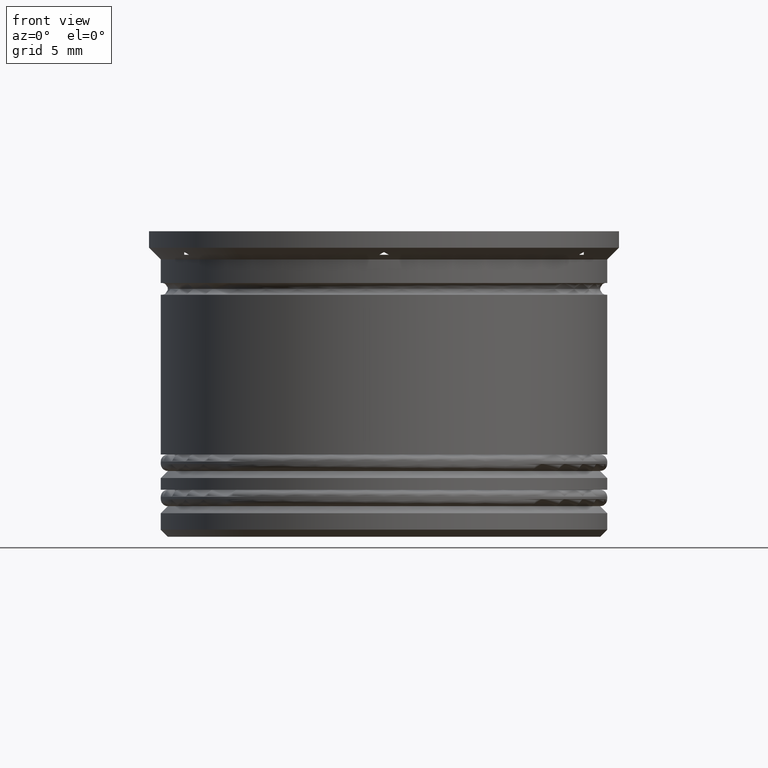
[diagram: clean part render]
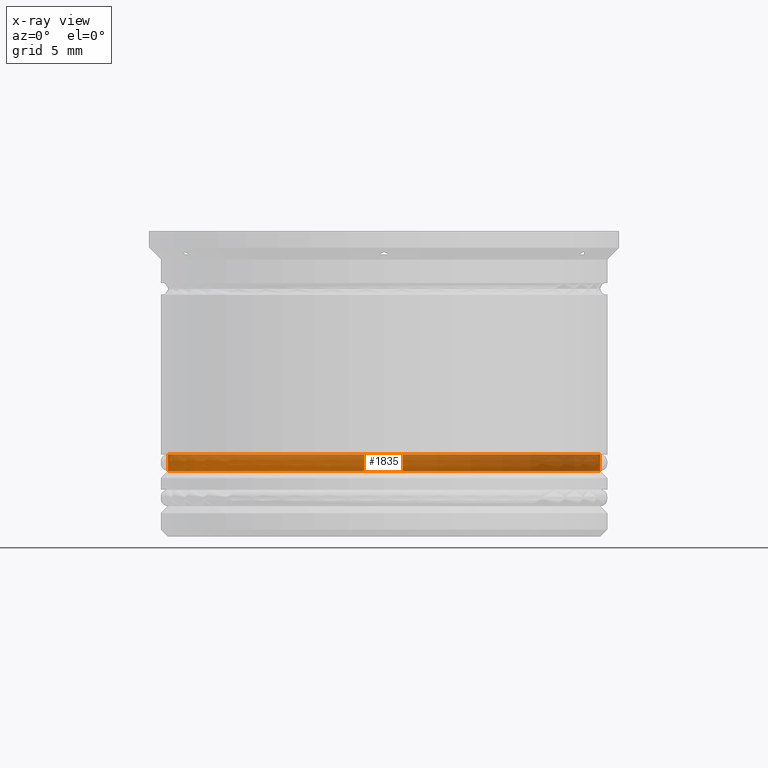
[diagram: x-ray — body ghosted, one internal face saturated and labeled with its STEP entity id]
A machine part, front view, then the same camera in x-ray: the body is ghosted and one INTERNAL B-rep face — a face not visible from any outside direction — is saturated and labeled: STEP entity #1835.
In plain terms, the highlighted cylindrical surface (partial cylindrical patch) has radius 9.2 mm, axis along (-0, -0, 1).
Its self-contained STEP definition (entity closure, byte-faithful):
#8 = CIRCLE ( 'NONE', #1205, 9.199999999999999289 ) ;
#27 = EDGE_CURVE ( 'NONE', #730, #370, #1903, .T. ) ;
#45 = VECTOR ( 'NONE', #945, 1000.000000000000000 ) ;
#94 = VECTOR ( 'NONE', #164, 1000.000000000000000 ) ;
#164 = DIRECTION ( 'NONE',  ( -0.000000000000000000, -0.000000000000000000, 1.000000000000000000 ) ) ;
#234 = EDGE_CURVE ( 'NONE', #290, #321, #8, .T. ) ;
#290 = VERTEX_POINT ( 'NONE', #1611 ) ;
#321 = VERTEX_POINT ( 'NONE', #1272 ) ;
#353 = EDGE_CURVE ( 'NONE', #290, #730, #1425, .T. ) ;
#370 = VERTEX_POINT ( 'NONE', #1725 ) ;
#419 = CARTESIAN_POINT ( 'NONE',  ( 9.199999999999999289, 0.000000000000000000, 0.000000000000000000 ) ) ;
#630 = ORIENTED_EDGE ( 'NONE', *, *, #234, .T. ) ;
#670 = DIRECTION ( 'NONE',  ( -0.000000000000000000, -0.000000000000000000, 1.000000000000000000 ) ) ;
#730 = VERTEX_POINT ( 'NONE', #1507 ) ;
#746 = FACE_OUTER_BOUND ( 'NONE', #804, .T. ) ;
#802 = ORIENTED_EDGE ( 'NONE', *, *, #27, .F. ) ;
#804 = EDGE_LOOP ( 'NONE', ( #630, #1865, #802, #1430 ) ) ;
#825 = AXIS2_PLACEMENT_3D ( 'NONE', #1426, #2092, #1262 ) ;
#848 = CARTESIAN_POINT ( 'NONE',  ( 0.000000000000000000, 0.000000000000000000, -9.500000000000000000 ) ) ;
#945 = DIRECTION ( 'NONE',  ( -0.000000000000000000, -0.000000000000000000, 1.000000000000000000 ) ) ;
#1176 = AXIS2_PLACEMENT_3D ( 'NONE', #848, #670, #1348 ) ;
#1205 = AXIS2_PLACEMENT_3D ( 'NONE', #1369, #2034, #1885 ) ;
#1262 = DIRECTION ( 'NONE',  ( 1.000000000000000000, 0.000000000000000000, 0.000000000000000000 ) ) ;
#1272 = CARTESIAN_POINT ( 'NONE',  ( -9.199999999999999289, 1.126675055215564822E-15, -10.20000000000000639 ) ) ;
#1348 = DIRECTION ( 'NONE',  ( 1.000000000000000000, 0.000000000000000000, 0.000000000000000000 ) ) ;
#1369 = CARTESIAN_POINT ( 'NONE',  ( 0.000000000000000000, 0.000000000000000000, -10.20000000000000639 ) ) ;
#1425 = LINE ( 'NONE', #419, #45 ) ;
#1426 = CARTESIAN_POINT ( 'NONE',  ( 0.000000000000000000, 0.000000000000000000, 0.000000000000000000 ) ) ;
#1430 = ORIENTED_EDGE ( 'NONE', *, *, #353, .F. ) ;
#1507 = CARTESIAN_POINT ( 'NONE',  ( 9.199999999999999289, 0.000000000000000000, -9.500000000000000000 ) ) ;
#1601 = CYLINDRICAL_SURFACE ( 'NONE', #825, 9.199999999999999289 ) ;
#1611 = CARTESIAN_POINT ( 'NONE',  ( 9.199999999999999289, 0.000000000000000000, -10.20000000000000639 ) ) ;
#1676 = CARTESIAN_POINT ( 'NONE',  ( -9.199999999999999289, 1.126675055215564822E-15, 0.000000000000000000 ) ) ;
#1725 = CARTESIAN_POINT ( 'NONE',  ( -9.199999999999999289, 1.126675055215564822E-15, -9.500000000000000000 ) ) ;
#1835 = ADVANCED_FACE ( 'NONE', ( #746 ), #1601, .T. ) ;
#1865 = ORIENTED_EDGE ( 'NONE', *, *, #1924, .T. ) ;
#1885 = DIRECTION ( 'NONE',  ( -1.000000000000000000, 0.000000000000000000, 0.000000000000000000 ) ) ;
#1903 = CIRCLE ( 'NONE', #1176, 9.199999999999999289 ) ;
#1924 = EDGE_CURVE ( 'NONE', #321, #370, #2156, .T. ) ;
#2034 = DIRECTION ( 'NONE',  ( -0.000000000000000000, -0.000000000000000000, 1.000000000000000000 ) ) ;
#2092 = DIRECTION ( 'NONE',  ( -0.000000000000000000, -0.000000000000000000, 1.000000000000000000 ) ) ;
#2156 = LINE ( 'NONE', #1676, #94 ) ;